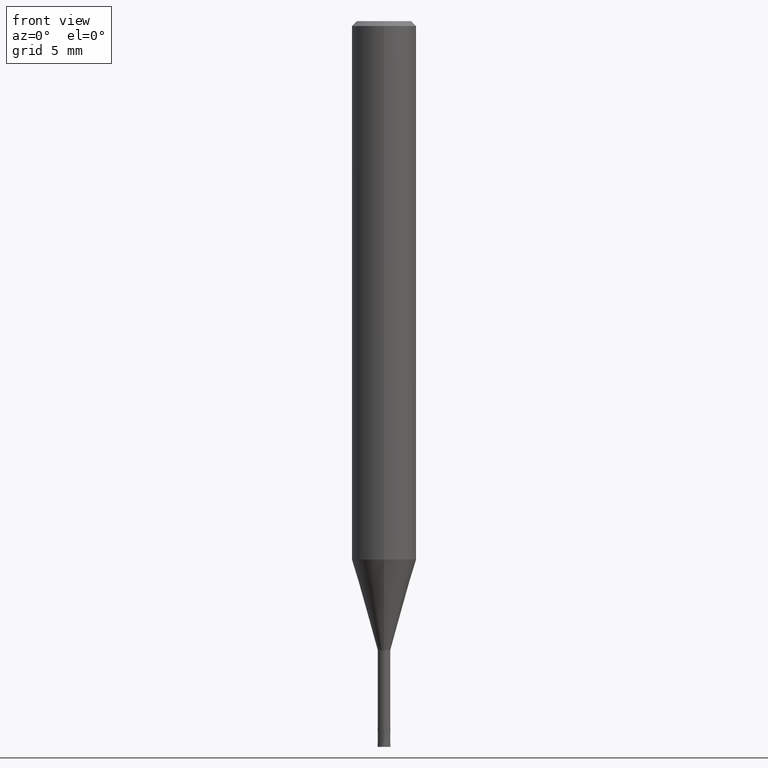
[diagram: clean part render]
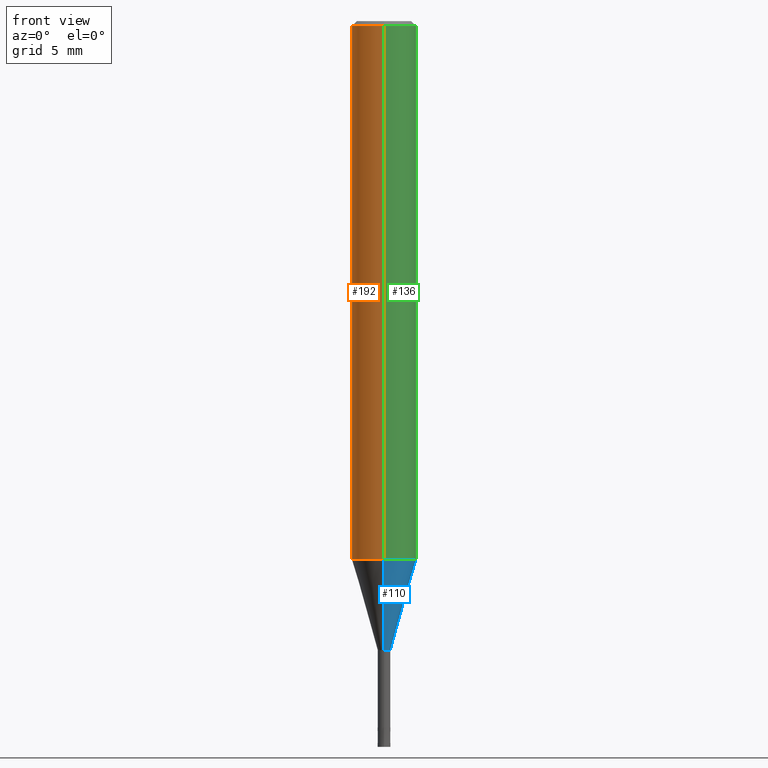
[diagram: same view with three faces highlighted in distinct colors, each labeled with its STEP entity id]
A machine part, front view with three faces highlighted in distinct colors.
Their STEP definitions:

[orange] entity #192 — the highlighted cylindrical surface (edge-blend (fillet) strip) has radius 2 mm, axis along (-0, -0, 1).
#120=EDGE_CURVE('',#150,#156,#260,.T.);
#126=VERTEX_POINT('',#267);
#150=VERTEX_POINT('',#294);
#156=VERTEX_POINT('',#300);
#158=EDGE_CURVE('',#198,#126,#302,.T.);
#164=EDGE_CURVE('',#150,#198,#308,.T.);
#182=EDGE_CURVE('',#126,#156,#328,.T.);
#192=ADVANCED_FACE('',(#343),#344,.T.);
#198=VERTEX_POINT('',#351);
#260=CIRCLE('',#414,2.0);
#267=CARTESIAN_POINT('',(0.0,2.0,-0.299999999999997));
#294=CARTESIAN_POINT('',(2.44921270764475E-016,-2.0,-33.385));
#300=CARTESIAN_POINT('',(0.0,2.0,-33.385));
#302=CIRCLE('',#468,2.0);
#308=LINE('',#476,#477);
#328=LINE('',#501,#502);
#343=FACE_OUTER_BOUND('',#517,.T.);
#344=CYLINDRICAL_SURFACE('',#518,2.0);
#351=CARTESIAN_POINT('',(2.44921270764475E-016,-2.0,-0.299999999999997));
#414=AXIS2_PLACEMENT_3D('',#580,#581,#582);
#468=AXIS2_PLACEMENT_3D('',#632,#633,#634);
#476=CARTESIAN_POINT('',(2.44921270764475E-016,-2.0,-16.8425));
#477=VECTOR('',#638,1.0);
#501=CARTESIAN_POINT('',(-2.44921270764475E-016,2.0,-16.8425));
#502=VECTOR('',#659,1.0);
#517=EDGE_LOOP('',(#691,#692,#693,#694));
#518=AXIS2_PLACEMENT_3D('',#695,#696,#697);
#580=CARTESIAN_POINT('',(0.0,0.0,-33.385));
#581=DIRECTION('',(0.0,0.0,-1.0));
#582=DIRECTION('',(0.0,1.0,0.0));
#632=CARTESIAN_POINT('',(0.0,0.0,-0.299999999999997));
#633=DIRECTION('',(0.0,0.0,-1.0));
#634=DIRECTION('',(0.0,1.0,0.0));
#638=DIRECTION('',(-0.0,-0.0,1.0));
#659=DIRECTION('',(0.0,0.0,-1.0));
#691=ORIENTED_EDGE('',*,*,#182,.T.);
#692=ORIENTED_EDGE('',*,*,#120,.F.);
#693=ORIENTED_EDGE('',*,*,#164,.T.);
#694=ORIENTED_EDGE('',*,*,#158,.T.);
#695=CARTESIAN_POINT('',(0.0,0.0,-16.8425));
#696=DIRECTION('',(-0.0,-0.0,1.0));
#697=DIRECTION('',(0.0,1.0,0.0));

[blue] entity #110 — the highlighted conical surface has half-angle 15.999 deg.
#96=EDGE_CURVE('',#176,#168,#234,.T.);
#106=VERTEX_POINT('',#245);
#110=ADVANCED_FACE('',(#249),#250,.T.);
#116=EDGE_CURVE('',#176,#206,#256,.T.);
#128=EDGE_CURVE('',#106,#206,#269,.T.);
#168=VERTEX_POINT('',#313);
#176=VERTEX_POINT('',#322);
#206=VERTEX_POINT('',#359);
#208=EDGE_CURVE('',#168,#106,#361,.T.);
#234=LINE('',#381,#382);
#245=CARTESIAN_POINT('',(4.77535247673036E-017,-0.38995,-39.0));
#249=FACE_OUTER_BOUND('',#401,.T.);
#250=CONICAL_SURFACE('',#402,1.19495,0.279240281890545);
#256=CIRCLE('',#410,1.99995);
#269=LINE('',#425,#426);
#313=CARTESIAN_POINT('',(0.0,0.38995,-39.0));
#322=CARTESIAN_POINT('',(0.0,1.99995,-33.385));
#359=CARTESIAN_POINT('',(2.44915147732706E-016,-1.99995,-33.385));
#361=CIRCLE('',#540,0.38995);
#381=CARTESIAN_POINT('',(-1.46334336250005E-016,1.19495,-36.1925));
#382=VECTOR('',#551,1.0);
#401=EDGE_LOOP('',(#566,#567,#568,#569));
#402=AXIS2_PLACEMENT_3D('',#570,#571,#572);
#410=AXIS2_PLACEMENT_3D('',#576,#577,#578);
#425=CARTESIAN_POINT('',(1.46334336250005E-016,-1.19495,-36.1925));
#426=VECTOR('',#594,1.0);
#540=AXIS2_PLACEMENT_3D('',#711,#712,#713);
#551=DIRECTION('',(3.37532662235176E-017,-0.275625437661361,-0.961265113334497));
#566=ORIENTED_EDGE('',*,*,#96,.F.);
#567=ORIENTED_EDGE('',*,*,#116,.T.);
#568=ORIENTED_EDGE('',*,*,#128,.F.);
#569=ORIENTED_EDGE('',*,*,#208,.F.);
#570=CARTESIAN_POINT('',(0.0,0.0,-36.1925));
#571=DIRECTION('',(-0.0,-0.0,1.0));
#572=DIRECTION('',(0.0,1.0,0.0));
#576=CARTESIAN_POINT('',(0.0,0.0,-33.385));
#577=DIRECTION('',(0.0,0.0,-1.0));
#578=DIRECTION('',(0.0,1.0,0.0));
#594=DIRECTION('',(3.37532662235176E-017,-0.275625437661361,0.961265113334497));
#711=CARTESIAN_POINT('',(0.0,0.0,-39.0));
#712=DIRECTION('',(0.0,0.0,-1.0));
#713=DIRECTION('',(0.0,1.0,0.0));

[green] entity #136 — the highlighted cylindrical surface (edge-blend (fillet) strip) has radius 2 mm, axis along (-0, -0, 1).
#124=EDGE_CURVE('',#156,#150,#265,.T.);
#126=VERTEX_POINT('',#267);
#136=ADVANCED_FACE('',(#277),#278,.T.);
#150=VERTEX_POINT('',#294);
#156=VERTEX_POINT('',#300);
#164=EDGE_CURVE('',#150,#198,#308,.T.);
#172=EDGE_CURVE('',#126,#198,#317,.T.);
#182=EDGE_CURVE('',#126,#156,#328,.T.);
#198=VERTEX_POINT('',#351);
#265=CIRCLE('',#420,2.0);
#267=CARTESIAN_POINT('',(0.0,2.0,-0.299999999999997));
#277=FACE_OUTER_BOUND('',#435,.T.);
#278=CYLINDRICAL_SURFACE('',#436,2.0);
#294=CARTESIAN_POINT('',(2.44921270764475E-016,-2.0,-33.385));
#300=CARTESIAN_POINT('',(0.0,2.0,-33.385));
#308=LINE('',#476,#477);
#317=CIRCLE('',#487,2.0);
#328=LINE('',#501,#502);
#351=CARTESIAN_POINT('',(2.44921270764475E-016,-2.0,-0.299999999999997));
#420=AXIS2_PLACEMENT_3D('',#591,#592,#593);
#435=EDGE_LOOP('',(#598,#599,#600,#601));
#436=AXIS2_PLACEMENT_3D('',#602,#603,#604);
#476=CARTESIAN_POINT('',(2.44921270764475E-016,-2.0,-16.8425));
#477=VECTOR('',#638,1.0);
#487=AXIS2_PLACEMENT_3D('',#647,#648,#649);
#501=CARTESIAN_POINT('',(-2.44921270764475E-016,2.0,-16.8425));
#502=VECTOR('',#659,1.0);
#591=CARTESIAN_POINT('',(0.0,0.0,-33.385));
#592=DIRECTION('',(0.0,0.0,-1.0));
#593=DIRECTION('',(0.0,1.0,0.0));
#598=ORIENTED_EDGE('',*,*,#182,.F.);
#599=ORIENTED_EDGE('',*,*,#172,.T.);
#600=ORIENTED_EDGE('',*,*,#164,.F.);
#601=ORIENTED_EDGE('',*,*,#124,.F.);
#602=CARTESIAN_POINT('',(0.0,0.0,-16.8425));
#603=DIRECTION('',(-0.0,-0.0,1.0));
#604=DIRECTION('',(0.0,1.0,0.0));
#638=DIRECTION('',(-0.0,-0.0,1.0));
#647=CARTESIAN_POINT('',(0.0,0.0,-0.299999999999997));
#648=DIRECTION('',(0.0,0.0,-1.0));
#649=DIRECTION('',(0.0,1.0,0.0));
#659=DIRECTION('',(0.0,0.0,-1.0));